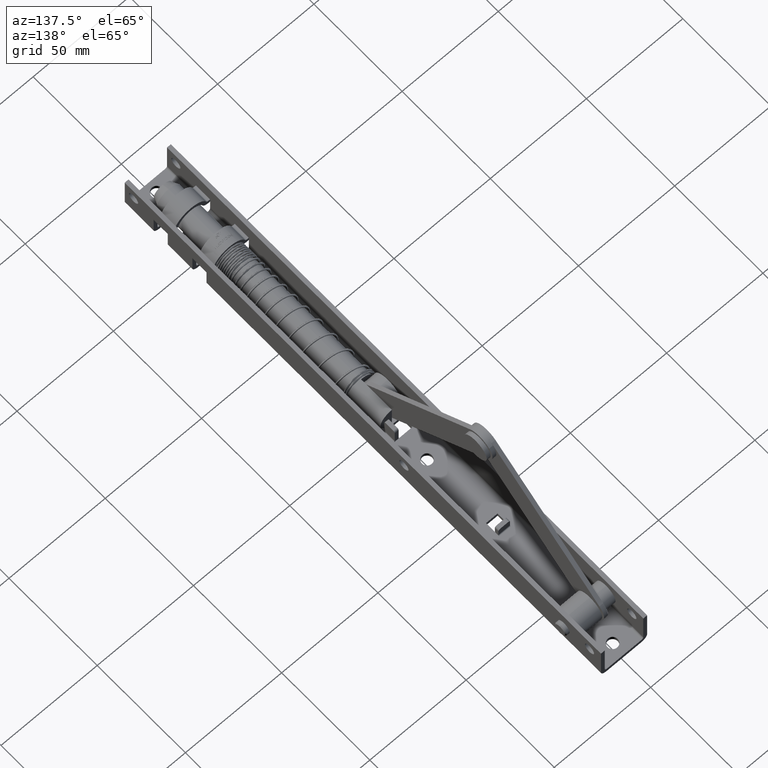
[diagram: clean part render]
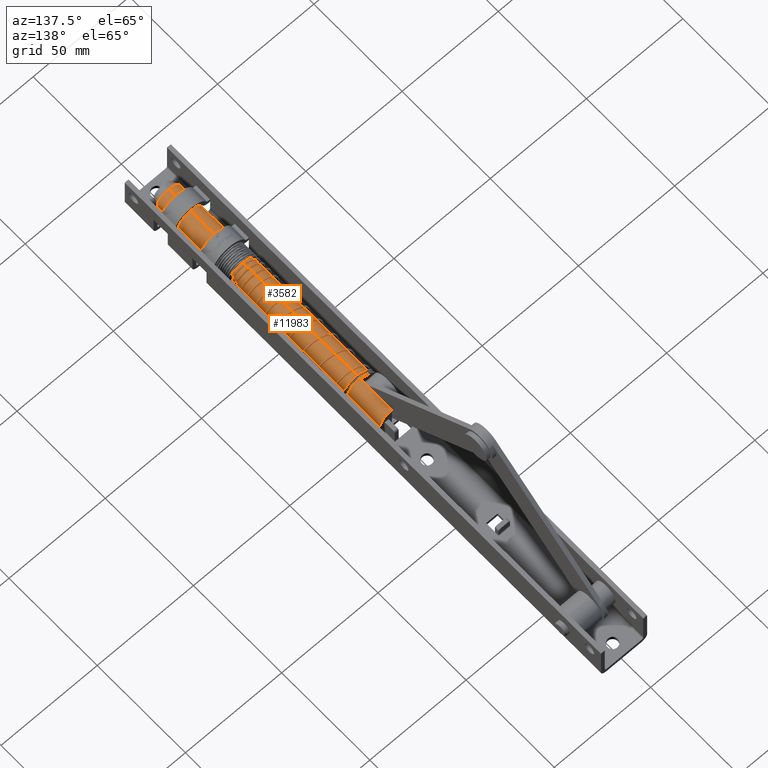
[diagram: same view with one multi-face feature highlighted, each face labeled with its STEP entity id]
A machine part, auxiliary view. The highlighted faces form ONE feature: a constant-radius fillet chain: 2 tangent blend faces with common blend radius 6 mm. The faces share edges in the B-rep.
Their STEP definitions:
[1] entity #11983 (Cylinder):
#1949 = VECTOR ( 'NONE', #17970, 1000.000000000000000 ) ;
#2151 = DIRECTION ( 'NONE',  ( 0.000000000000000000, 0.000000000000000000, 1.000000000000000000 ) ) ;
#2256 = DIRECTION ( 'NONE',  ( 0.000000000000000000, 0.000000000000000000, 1.000000000000000000 ) ) ;
#2423 = CARTESIAN_POINT ( 'NONE',  ( 2.379661437343186912E-14, 65.00000000000000000, -5.999999999999992006 ) ) ;
#2917 = CARTESIAN_POINT ( 'NONE',  ( 1.233463314714663809E-14, 47.50000000000000000, 5.999999999999992006 ) ) ;
#3037 = CYLINDRICAL_SURFACE ( 'NONE', #9595, 5.999999999999992006 ) ;
#3295 = CARTESIAN_POINT ( 'NONE',  ( 2.306182629394345823E-14, 65.00000000000000000, 5.999999999999992006 ) ) ;
#3533 = VERTEX_POINT ( 'NONE', #2917 ) ;
#3881 = VECTOR ( 'NONE', #15730, 1000.000000000000000 ) ;
#4049 = VERTEX_POINT ( 'NONE', #6968 ) ;
#4708 = LINE ( 'NONE', #12387, #22267 ) ;
#5208 = LINE ( 'NONE', #11332, #1949 ) ;
#5994 = EDGE_CURVE ( 'NONE', #8076, #15914, #14736, .T. ) ;
#6222 = DIRECTION ( 'NONE',  ( -0.000000000000000000, 1.000000000000000000, -0.000000000000000000 ) ) ;
#6968 = CARTESIAN_POINT ( 'NONE',  ( 2.306182629394345823E-14, -61.50000000000000000, 5.999999999999992006 ) ) ;
#7114 = FACE_OUTER_BOUND ( 'NONE', #19749, .T. ) ;
#7169 = CARTESIAN_POINT ( 'NONE',  ( 2.306182629394345823E-14, 65.00000000000000000, 0.000000000000000000 ) ) ;
#7258 = DIRECTION ( 'NONE',  ( -0.000000000000000000, 1.000000000000000000, -0.000000000000000000 ) ) ;
#8076 = VERTEX_POINT ( 'NONE', #14165 ) ;
#8498 = CARTESIAN_POINT ( 'NONE',  ( 2.306182629394345823E-14, 65.00000000000000000, 0.000000000000000000 ) ) ;
#8535 = EDGE_CURVE ( 'NONE', #4049, #3533, #22230, .T. ) ;
#8729 = VECTOR ( 'NONE', #6222, 1000.000000000000000 ) ;
#9406 = AXIS2_PLACEMENT_3D ( 'NONE', #7169, #17693, #2151 ) ;
#9595 = AXIS2_PLACEMENT_3D ( 'NONE', #8498, #7258, #14171 ) ;
#10462 = ORIENTED_EDGE ( 'NONE', *, *, #11550, .T. ) ;
#11071 = ORIENTED_EDGE ( 'NONE', *, *, #8535, .F. ) ;
#11332 = CARTESIAN_POINT ( 'NONE',  ( 1.233463314714663809E-14, 47.50000000000000000, 5.999999999999992006 ) ) ;
#11533 = EDGE_CURVE ( 'NONE', #3533, #8076, #5208, .T. ) ;
#11550 = EDGE_CURVE ( 'NONE', #20715, #19124, #19760, .T. ) ;
#11983 = ADVANCED_FACE ( 'NONE', ( #7114 ), #3037, .T. ) ;
#12387 = CARTESIAN_POINT ( 'NONE',  ( 2.306182629394345823E-14, 47.50000000000000000, -5.999999999999991118 ) ) ;
#12763 = ORIENTED_EDGE ( 'NONE', *, *, #17116, .T. ) ;
#14165 = CARTESIAN_POINT ( 'NONE',  ( 1.233463314714663809E-14, 65.00000000000000000, 5.999999999999992006 ) ) ;
#14171 = DIRECTION ( 'NONE',  ( 0.000000000000000000, 0.000000000000000000, 1.000000000000000000 ) ) ;
#14212 = CARTESIAN_POINT ( 'NONE',  ( 2.306182629394345823E-14, 65.00000000000000000, -5.999999999999991118 ) ) ;
#14392 = CIRCLE ( 'NONE', #19975, 5.999999999999992006 ) ;
#14736 = CIRCLE ( 'NONE', #9406, 5.999999999999992006 ) ;
#14866 = CARTESIAN_POINT ( 'NONE',  ( 2.306182629394345823E-14, 47.50000000000000000, -5.999999999999991118 ) ) ;
#14948 = CARTESIAN_POINT ( 'NONE',  ( 2.379661437343186912E-14, -61.50000000000000000, -5.999999999999992006 ) ) ;
#15730 = DIRECTION ( 'NONE',  ( -0.000000000000000000, 1.000000000000000000, -0.000000000000000000 ) ) ;
#15733 = ORIENTED_EDGE ( 'NONE', *, *, #5994, .F. ) ;
#15914 = VERTEX_POINT ( 'NONE', #14212 ) ;
#16775 = CARTESIAN_POINT ( 'NONE',  ( 2.306182629394345823E-14, -61.50000000000000000, 0.000000000000000000 ) ) ;
#17116 = EDGE_CURVE ( 'NONE', #19124, #15914, #4708, .T. ) ;
#17585 = DIRECTION ( 'NONE',  ( -0.000000000000000000, 1.000000000000000000, -0.000000000000000000 ) ) ;
#17649 = DIRECTION ( 'NONE',  ( -0.000000000000000000, 1.000000000000000000, -0.000000000000000000 ) ) ;
#17693 = DIRECTION ( 'NONE',  ( -0.000000000000000000, 1.000000000000000000, -0.000000000000000000 ) ) ;
#17970 = DIRECTION ( 'NONE',  ( -0.000000000000000000, 1.000000000000000000, -0.000000000000000000 ) ) ;
#18525 = ORIENTED_EDGE ( 'NONE', *, *, #11533, .F. ) ;
#19124 = VERTEX_POINT ( 'NONE', #14866 ) ;
#19310 = EDGE_CURVE ( 'NONE', #4049, #20715, #14392, .T. ) ;
#19749 = EDGE_LOOP ( 'NONE', ( #21323, #10462, #12763, #15733, #18525, #11071 ) ) ;
#19760 = LINE ( 'NONE', #2423, #8729 ) ;
#19975 = AXIS2_PLACEMENT_3D ( 'NONE', #16775, #17585, #2256 ) ;
#20715 = VERTEX_POINT ( 'NONE', #14948 ) ;
#21323 = ORIENTED_EDGE ( 'NONE', *, *, #19310, .T. ) ;
#22230 = LINE ( 'NONE', #3295, #3881 ) ;
#22267 = VECTOR ( 'NONE', #17649, 1000.000000000000000 ) ;
[2] entity #3582 (Cylinder):
#1 = ORIENTED_EDGE ( 'NONE', *, *, #16158, .T. ) ;
#1377 = ORIENTED_EDGE ( 'NONE', *, *, #8535, .T. ) ;
#2423 = CARTESIAN_POINT ( 'NONE',  ( 2.379661437343186912E-14, 65.00000000000000000, -5.999999999999992006 ) ) ;
#2843 = CARTESIAN_POINT ( 'NONE',  ( 2.306182629394345823E-14, 65.00000000000000000, 0.000000000000000000 ) ) ;
#2917 = CARTESIAN_POINT ( 'NONE',  ( 1.233463314714663809E-14, 47.50000000000000000, 5.999999999999992006 ) ) ;
#3253 = EDGE_LOOP ( 'NONE', ( #7014, #1, #1377, #4040 ) ) ;
#3295 = CARTESIAN_POINT ( 'NONE',  ( 2.306182629394345823E-14, 65.00000000000000000, 5.999999999999992006 ) ) ;
#3533 = VERTEX_POINT ( 'NONE', #2917 ) ;
#3582 = ADVANCED_FACE ( 'NONE', ( #20187 ), #14524, .T. ) ;
#3881 = VECTOR ( 'NONE', #15730, 1000.000000000000000 ) ;
#4040 = ORIENTED_EDGE ( 'NONE', *, *, #19395, .F. ) ;
#4049 = VERTEX_POINT ( 'NONE', #6968 ) ;
#4261 = AXIS2_PLACEMENT_3D ( 'NONE', #13149, #11497, #20082 ) ;
#6222 = DIRECTION ( 'NONE',  ( -0.000000000000000000, 1.000000000000000000, -0.000000000000000000 ) ) ;
#6724 = DIRECTION ( 'NONE',  ( -0.000000000000000000, 1.000000000000000000, -0.000000000000000000 ) ) ;
#6968 = CARTESIAN_POINT ( 'NONE',  ( 2.306182629394345823E-14, -61.50000000000000000, 5.999999999999992006 ) ) ;
#7014 = ORIENTED_EDGE ( 'NONE', *, *, #11550, .F. ) ;
#7776 = DIRECTION ( 'NONE',  ( 0.000000000000000000, 0.000000000000000000, 1.000000000000000000 ) ) ;
#8535 = EDGE_CURVE ( 'NONE', #4049, #3533, #22230, .T. ) ;
#8604 = DIRECTION ( 'NONE',  ( 0.000000000000000000, 0.000000000000000000, 1.000000000000000000 ) ) ;
#8729 = VECTOR ( 'NONE', #6222, 1000.000000000000000 ) ;
#9175 = AXIS2_PLACEMENT_3D ( 'NONE', #2843, #6724, #8604 ) ;
#9345 = DIRECTION ( 'NONE',  ( 0.000000000000000000, 1.000000000000000000, 0.000000000000000000 ) ) ;
#11497 = DIRECTION ( 'NONE',  ( -0.000000000000000000, 1.000000000000000000, -0.000000000000000000 ) ) ;
#11550 = EDGE_CURVE ( 'NONE', #20715, #19124, #19760, .T. ) ;
#12593 = CARTESIAN_POINT ( 'NONE',  ( 2.306182629394345823E-14, 47.50000000000000000, 0.000000000000000000 ) ) ;
#13149 = CARTESIAN_POINT ( 'NONE',  ( 2.306182629394345823E-14, -61.50000000000000000, 0.000000000000000000 ) ) ;
#14524 = CYLINDRICAL_SURFACE ( 'NONE', #9175, 5.999999999999992006 ) ;
#14866 = CARTESIAN_POINT ( 'NONE',  ( 2.306182629394345823E-14, 47.50000000000000000, -5.999999999999991118 ) ) ;
#14933 = AXIS2_PLACEMENT_3D ( 'NONE', #12593, #9345, #7776 ) ;
#14948 = CARTESIAN_POINT ( 'NONE',  ( 2.379661437343186912E-14, -61.50000000000000000, -5.999999999999992006 ) ) ;
#15730 = DIRECTION ( 'NONE',  ( -0.000000000000000000, 1.000000000000000000, -0.000000000000000000 ) ) ;
#16158 = EDGE_CURVE ( 'NONE', #20715, #4049, #19831, .T. ) ;
#16284 = CIRCLE ( 'NONE', #14933, 5.999999999999992006 ) ;
#19124 = VERTEX_POINT ( 'NONE', #14866 ) ;
#19395 = EDGE_CURVE ( 'NONE', #19124, #3533, #16284, .T. ) ;
#19760 = LINE ( 'NONE', #2423, #8729 ) ;
#19831 = CIRCLE ( 'NONE', #4261, 5.999999999999992006 ) ;
#20082 = DIRECTION ( 'NONE',  ( 0.000000000000000000, 0.000000000000000000, 1.000000000000000000 ) ) ;
#20187 = FACE_OUTER_BOUND ( 'NONE', #3253, .T. ) ;
#20715 = VERTEX_POINT ( 'NONE', #14948 ) ;
#22230 = LINE ( 'NONE', #3295, #3881 ) ;